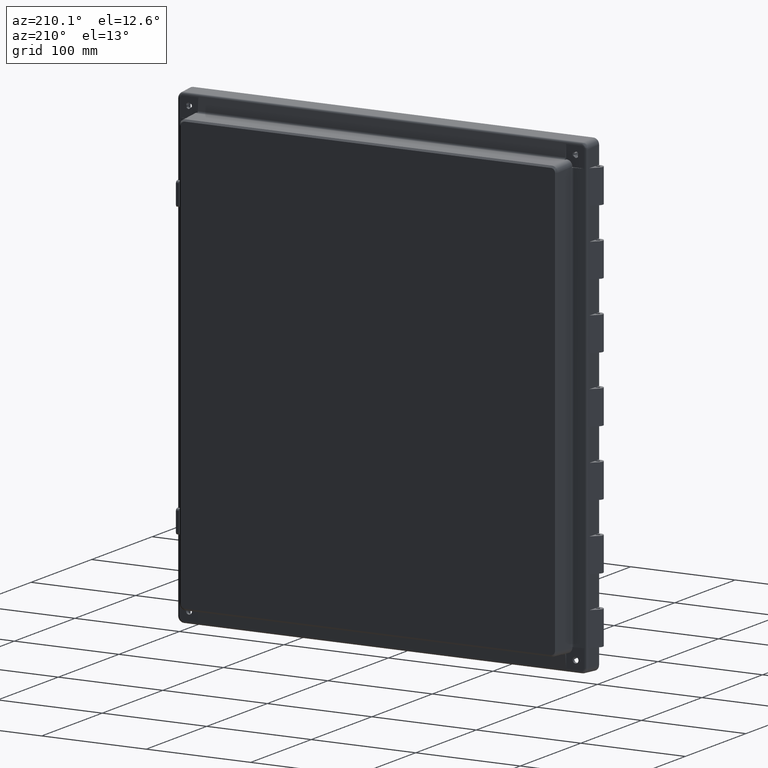
[diagram: clean part render]
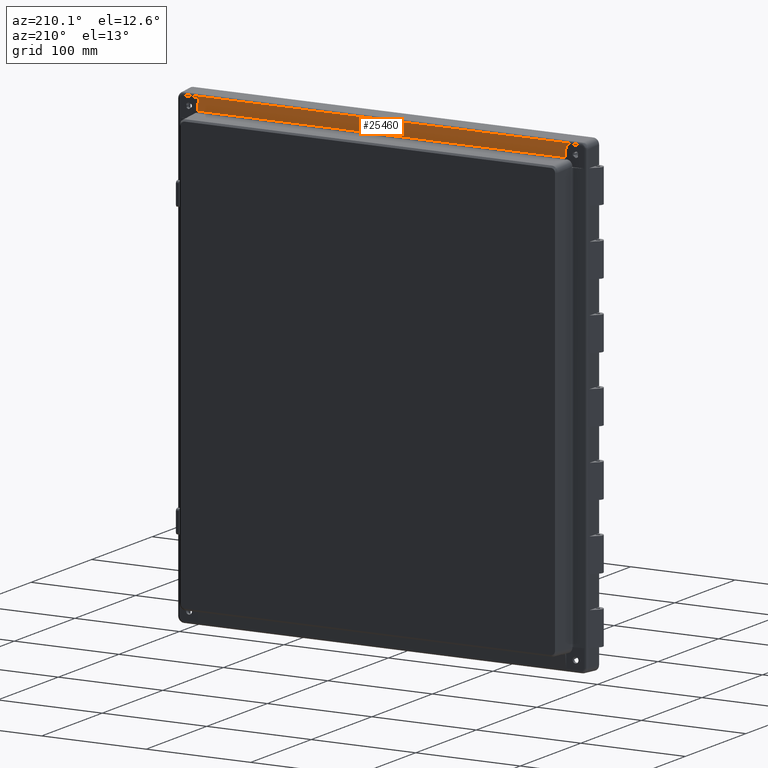
[diagram: same view with one face highlighted and labeled with its STEP entity id]
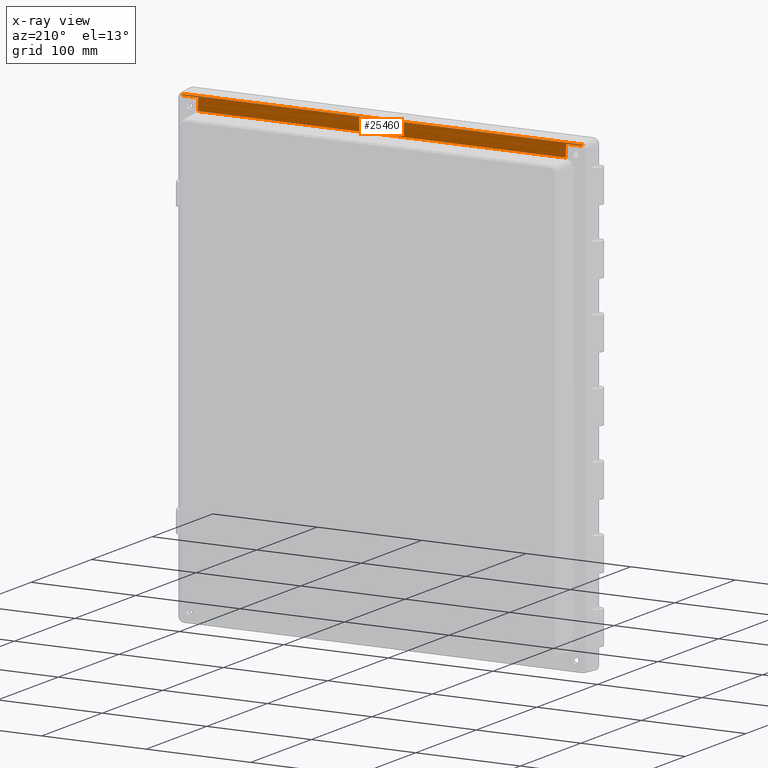
[diagram: x-ray of the same camera — body ghosted, the highlighted face saturated]
A machine part, auxiliary view. The second image highlights one B-rep face of the part: STEP entity #25460.
The next image is the same camera in x-ray: the body ghosted, the highlighted face saturated — about 0% of this face is hidden behind the body in this view.
In plain terms, the highlighted planar face has unit normal (0, 0.9954, 0.0958).
Its self-contained STEP definition (entity closure, byte-faithful):
#14193 = CARTESIAN_POINT ( 'NONE',  ( -190.5736508560152100, 10.16517196802745800, 223.5105457326963900 ) ) ;
#14194 = CARTESIAN_POINT ( 'NONE',  ( -190.9133238884759900, 10.16517196802745800, 223.5105457326963900 ) ) ;
#14195 = CARTESIAN_POINT ( 'NONE',  ( -191.2490559122944100, 10.16991748621195100, 223.4612616419993900 ) ) ;
#14196 = CARTESIAN_POINT ( 'NONE',  ( -191.5738134976136000, 10.17930910618060200, 223.3637259393991900 ) ) ;
#14197 =( BOUNDED_CURVE ( )  B_SPLINE_CURVE ( 3, ( #14196, #14195, #14194, #14193 ),
 .UNSPECIFIED., .F., .T. ) 
 B_SPLINE_CURVE_WITH_KNOTS ( ( 4, 4 ),
 ( 0.04668358700360624600, 0.3364159552918631900 ),
 .UNSPECIFIED. ) 
 CURVE ( )  GEOMETRIC_REPRESENTATION_ITEM ( )  RATIONAL_B_SPLINE_CURVE ( ( 1.000000000000000000, 0.9930168215940675700, 0.9930168215940675700, 1.000000000000000000 ) ) 
 REPRESENTATION_ITEM ( '' )  );
#14223 = CARTESIAN_POINT ( 'NONE',  ( 175.9122338034379100, 11.35907232773465500, 211.1114164230169500 ) ) ;
#14224 = DIRECTION ( 'NONE',  ( -1.000000000000000000, 0.0000000000000000000, -0.0000000000000000000 ) ) ;
#14225 = VECTOR ( 'NONE', #14224, 1000.000000000000000 ) ;
#14226 = CARTESIAN_POINT ( 'NONE',  ( -175.9035775073936300, 11.35907232773465500, 211.1114164230169500 ) ) ;
#14227 = LINE ( 'NONE', #14226, #14225 ) ;
#14279 = CARTESIAN_POINT ( 'NONE',  ( -191.5738134976136000, 10.17930910618060200, 223.3637259393991900 ) ) ;
#14302 = CARTESIAN_POINT ( 'NONE',  ( -175.9122338034378000, 11.35907232773465700, 211.1114164230169500 ) ) ;
#14306 = CARTESIAN_POINT ( 'NONE',  ( 191.5738134976134600, 10.17930910618061100, 223.3637259393991000 ) ) ;
#14307 = CARTESIAN_POINT ( 'NONE',  ( 191.2490559122943000, 10.16991748621194900, 223.4612616419994100 ) ) ;
#14308 = CARTESIAN_POINT ( 'NONE',  ( 190.9133238884759900, 10.16517196802745600, 223.5105457326964100 ) ) ;
#14309 = CARTESIAN_POINT ( 'NONE',  ( 190.5736508560152100, 10.16517196802745800, 223.5105457326963900 ) ) ;
#14310 =( BOUNDED_CURVE ( )  B_SPLINE_CURVE ( 3, ( #14309, #14308, #14307, #14306 ),
 .UNSPECIFIED., .F., .T. ) 
 B_SPLINE_CURVE_WITH_KNOTS ( ( 4, 4 ),
 ( 5.946769351887731100, 6.236501720175956700 ),
 .UNSPECIFIED. ) 
 CURVE ( )  GEOMETRIC_REPRESENTATION_ITEM ( )  RATIONAL_B_SPLINE_CURVE ( ( 1.000000000000000000, 0.9930168215940691200, 0.9930168215940691200, 1.000000000000000000 ) ) 
 REPRESENTATION_ITEM ( '' )  );
#14327 = DIRECTION ( 'NONE',  ( 1.000000000000000000, -0.0000000000000000000, -0.0000000000000000000 ) ) ;
#14328 = VECTOR ( 'NONE', #14327, 1000.000000000000000 ) ;
#14329 = CARTESIAN_POINT ( 'NONE',  ( 190.4834597660194800, 10.16517196802745800, 223.5105457326963900 ) ) ;
#14330 = LINE ( 'NONE', #14329, #14328 ) ;
#14331 = CARTESIAN_POINT ( 'NONE',  ( 190.5736508560152100, 10.16517196802745800, 223.5105457326963900 ) ) ;
#14382 = CARTESIAN_POINT ( 'NONE',  ( 191.5738134976134600, 10.17930910618061100, 223.3637259393991000 ) ) ;
#14418 = CARTESIAN_POINT ( 'NONE',  ( -190.5736508560152100, 10.16517196802745800, 223.5105457326963900 ) ) ;
#15021 = DIRECTION ( 'NONE',  ( -0.005022999675636410700, 0.09584454339323118800, -0.9953836411032690500 ) ) ;
#15022 = VECTOR ( 'NONE', #15021, 1000.000000000000000 ) ;
#15023 = CARTESIAN_POINT ( 'NONE',  ( 175.9740750352578700, 10.17907133044049000, 223.3661953348762900 ) ) ;
#15024 = LINE ( 'NONE', #15023, #15022 ) ;
#15029 = CARTESIAN_POINT ( 'NONE',  ( 175.9696737350493000, 10.26305314132462100, 222.4940108813355000 ) ) ;
#15192 = LINE ( 'NONE', #15251, #15250 ) ;
#15193 = CARTESIAN_POINT ( 'NONE',  ( -175.9696737350491300, 10.26305314132462100, 222.4940108813355000 ) ) ;
#15242 = DIRECTION ( 'NONE',  ( 0.0000000000000000000, -0.09584575252022103900, 0.9953961983671790700 ) ) ;
#15243 = DIRECTION ( 'NONE',  ( 0.0000000000000000000, 0.9953961983671790700, 0.09584575252022103900 ) ) ;
#15244 = AXIS2_PLACEMENT_3D ( 'NONE', #15246, #15243, #15242 ) ;
#15246 = CARTESIAN_POINT ( 'NONE',  ( -195.9759222071697600, 9.999999999999998200, 225.2259222071694800 ) ) ;
#15247 = PLANE ( 'NONE',  #15244 ) ;
#15248 = FACE_OUTER_BOUND ( 'NONE', #25461, .T. ) ;
#15249 = DIRECTION ( 'NONE',  ( -0.005022999675636420300, -0.09584454339323118800, 0.9953836411032690500 ) ) ;
#15250 = VECTOR ( 'NONE', #15249, 1000.000000000000000 ) ;
#15251 = CARTESIAN_POINT ( 'NONE',  ( -175.9839641863576400, 9.990375086577660800, 225.3258807549223900 ) ) ;
#15324 = DIRECTION ( 'NONE',  ( -0.7054734583899195900, -0.06792936783698909400, 0.7054734583899194800 ) ) ;
#15325 = VECTOR ( 'NONE', #15324, 1000.000000000000100 ) ;
#15326 = CARTESIAN_POINT ( 'NONE',  ( -194.7001059015423700, 9.878281386219114800, 226.4900183433279600 ) ) ;
#15327 = LINE ( 'NONE', #15326, #15325 ) ;
#15395 = DIRECTION ( 'NONE',  ( -0.7054734583899195900, 0.06792936783698909400, -0.7054734583899194800 ) ) ;
#15396 = VECTOR ( 'NONE', #15395, 1000.000000000000100 ) ;
#15397 = CARTESIAN_POINT ( 'NONE',  ( -0.3715052032832733000, 28.66154114986259300, 31.41840723850239300 ) ) ;
#15411 = LINE ( 'NONE', #15397, #15396 ) ;
#15434 = CARTESIAN_POINT ( 'NONE',  ( -190.7040984395499100, 10.26305314132462100, 222.4940108813355000 ) ) ;
#15435 = DIRECTION ( 'NONE',  ( 1.000000000000000000, -0.0000000000000000000, -0.0000000000000000000 ) ) ;
#15436 = VECTOR ( 'NONE', #15435, 1000.000000000000000 ) ;
#15437 = CARTESIAN_POINT ( 'NONE',  ( -195.9759222071697600, 10.26305314132462100, 222.4940108813355000 ) ) ;
#15438 = LINE ( 'NONE', #15437, #15436 ) ;
#15439 = DIRECTION ( 'NONE',  ( 1.000000000000000000, -0.0000000000000000000, -0.0000000000000000000 ) ) ;
#15440 = VECTOR ( 'NONE', #15439, 1000.000000000000000 ) ;
#15441 = CARTESIAN_POINT ( 'NONE',  ( -195.9759222071697600, 10.26305314132462100, 222.4940108813355000 ) ) ;
#15442 = LINE ( 'NONE', #15441, #15440 ) ;
#15443 = CARTESIAN_POINT ( 'NONE',  ( 190.7040984395498500, 10.26305314132462100, 222.4940108813355000 ) ) ;
#24915 = EDGE_CURVE ( 'NONE', #24935, #24997, #14197, .T. ) ;
#24924 = EDGE_CURVE ( 'NONE', #24925, #24951, #14227, .T. ) ;
#24925 = VERTEX_POINT ( 'NONE', #14223 ) ;
#24935 = VERTEX_POINT ( 'NONE', #14279 ) ;
#24951 = VERTEX_POINT ( 'NONE', #14302 ) ;
#24964 = EDGE_CURVE ( 'NONE', #24980, #24991, #14310, .T. ) ;
#24980 = VERTEX_POINT ( 'NONE', #14331 ) ;
#24982 = EDGE_CURVE ( 'NONE', #24997, #24980, #14330, .T. ) ;
#24991 = VERTEX_POINT ( 'NONE', #14382 ) ;
#24997 = VERTEX_POINT ( 'NONE', #14418 ) ;
#25370 = VERTEX_POINT ( 'NONE', #15029 ) ;
#25375 = EDGE_CURVE ( 'NONE', #25370, #24925, #15024, .T. ) ;
#25456 = VERTEX_POINT ( 'NONE', #15193 ) ;
#25458 = EDGE_CURVE ( 'NONE', #24951, #25456, #15192, .T. ) ;
#25460 = ADVANCED_FACE ( 'NONE', ( #15248 ), #15247, .T. ) ;
#25461 = EDGE_LOOP ( 'NONE', ( #25462, #25523, #25524, #25527, #25529, #25530, #25531, #25532, #25508, #25510 ) ) ;
#25462 = ORIENTED_EDGE ( 'NONE', *, *, #24982, .T. ) ;
#25508 = ORIENTED_EDGE ( 'NONE', *, *, #25509, .T. ) ;
#25509 = EDGE_CURVE ( 'NONE', #25534, #24935, #15327, .T. ) ;
#25510 = ORIENTED_EDGE ( 'NONE', *, *, #24915, .T. ) ;
#25523 = ORIENTED_EDGE ( 'NONE', *, *, #24964, .T. ) ;
#25524 = ORIENTED_EDGE ( 'NONE', *, *, #25525, .T. ) ;
#25525 = EDGE_CURVE ( 'NONE', #24991, #25526, #15411, .T. ) ;
#25526 = VERTEX_POINT ( 'NONE', #15443 ) ;
#25527 = ORIENTED_EDGE ( 'NONE', *, *, #25528, .F. ) ;
#25528 = EDGE_CURVE ( 'NONE', #25370, #25526, #15442, .T. ) ;
#25529 = ORIENTED_EDGE ( 'NONE', *, *, #25375, .T. ) ;
#25530 = ORIENTED_EDGE ( 'NONE', *, *, #24924, .T. ) ;
#25531 = ORIENTED_EDGE ( 'NONE', *, *, #25458, .T. ) ;
#25532 = ORIENTED_EDGE ( 'NONE', *, *, #25533, .F. ) ;
#25533 = EDGE_CURVE ( 'NONE', #25534, #25456, #15438, .T. ) ;
#25534 = VERTEX_POINT ( 'NONE', #15434 ) ;